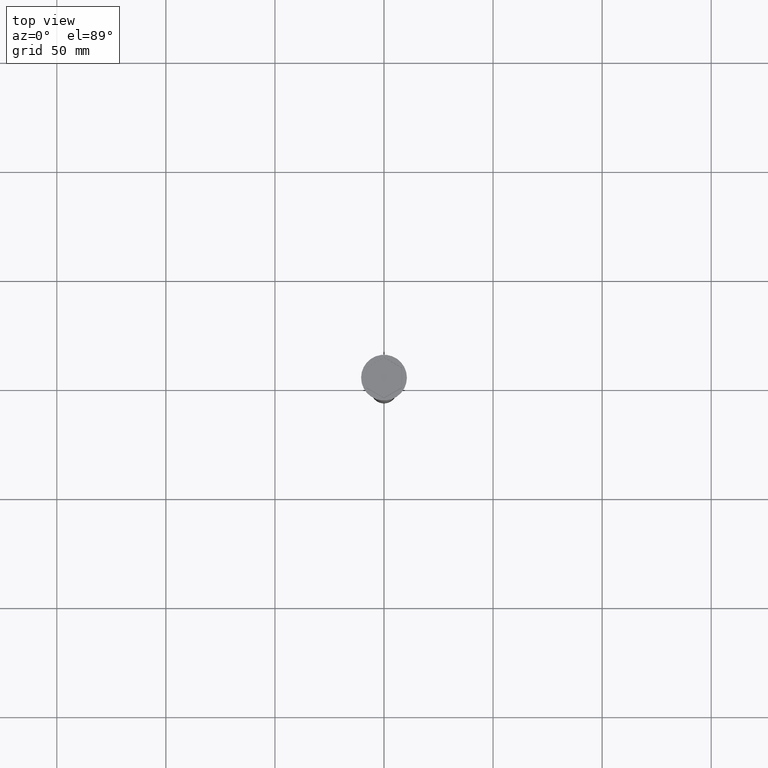
[diagram: clean part render]
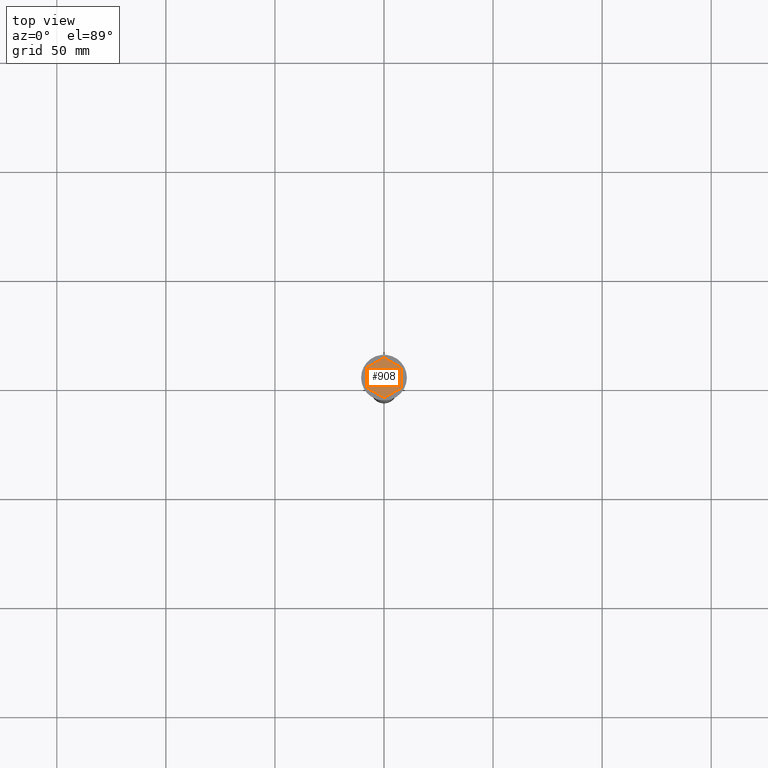
[diagram: same view with one face highlighted and labeled with its STEP entity id]
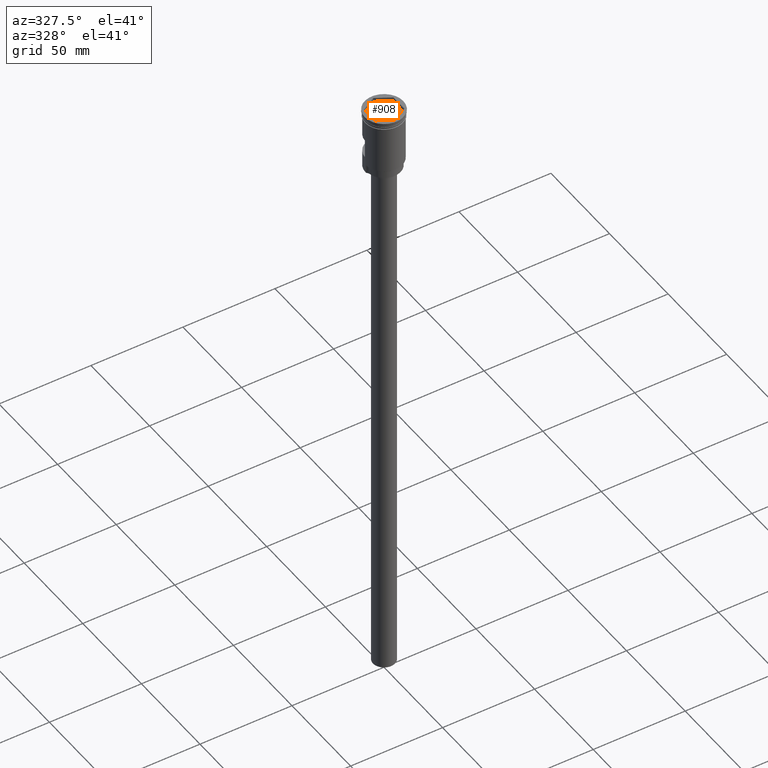
[diagram: same view with one face highlighted and labeled with its STEP entity id]
A machine part, top view. The second image highlights one B-rep face of the part: STEP entity #908.
A second angle (auxiliary view) of the same face is appended — the face is thin or edge-on in the first view.
In plain terms, the highlighted planar face has unit normal (-0, 0, 1).
Its self-contained STEP definition (entity closure, byte-faithful):
#27 = CARTESIAN_POINT ( 'NONE',  ( 3.999999999999998224, 6.928203230275506108, -2.000000000000000000 ) ) ;
#47 = VECTOR ( 'NONE', #156, 999.9999999999998863 ) ;
#53 = VECTOR ( 'NONE', #1200, 1000.000000000000000 ) ;
#114 = EDGE_CURVE ( 'NONE', #380, #1050, #1011, .T. ) ;
#156 = DIRECTION ( 'NONE',  ( -0.8660254037844387076, 0.5000000000000001110, 0.000000000000000000 ) ) ;
#175 = CARTESIAN_POINT ( 'NONE',  ( 0.000000000000000000, 0.000000000000000000, -2.000000000000000000 ) ) ;
#205 = CARTESIAN_POINT ( 'NONE',  ( -8.000000000000000000, 4.618802153517002296, -2.000000000000000000 ) ) ;
#240 = CARTESIAN_POINT ( 'NONE',  ( -8.000000000000000000, 0.000000000000000000, -2.000000000000000000 ) ) ;
#252 = ORIENTED_EDGE ( 'NONE', *, *, #853, .T. ) ;
#258 = VERTEX_POINT ( 'NONE', #205 ) ;
#313 = CARTESIAN_POINT ( 'NONE',  ( 0.000000000000000000, 9.237604307034009921, -2.000000000000000000 ) ) ;
#341 = VERTEX_POINT ( 'NONE', #1471 ) ;
#380 = VERTEX_POINT ( 'NONE', #1345 ) ;
#381 = CARTESIAN_POINT ( 'NONE',  ( -3.999999999999998224, 6.928203230275506108, -2.000000000000000000 ) ) ;
#388 = DIRECTION ( 'NONE',  ( 0.8660254037844387076, 0.4999999999999999445, 0.000000000000000000 ) ) ;
#399 = ORIENTED_EDGE ( 'NONE', *, *, #114, .T. ) ;
#418 = DIRECTION ( 'NONE',  ( -0.000000000000000000, 0.000000000000000000, 1.000000000000000000 ) ) ;
#453 = AXIS2_PLACEMENT_3D ( 'NONE', #175, #418, #786 ) ;
#464 = EDGE_CURVE ( 'NONE', #620, #539, #624, .T. ) ;
#507 = VECTOR ( 'NONE', #1603, 1000.000000000000000 ) ;
#519 = CARTESIAN_POINT ( 'NONE',  ( 4.000000000000000000, -6.928203230275510549, -2.000000000000000000 ) ) ;
#539 = VERTEX_POINT ( 'NONE', #313 ) ;
#620 = VERTEX_POINT ( 'NONE', #1468 ) ;
#624 = LINE ( 'NONE', #27, #47 ) ;
#657 = DIRECTION ( 'NONE',  ( 0.8660254037844387076, -0.4999999999999999445, 0.000000000000000000 ) ) ;
#659 = ORIENTED_EDGE ( 'NONE', *, *, #1212, .T. ) ;
#663 = VECTOR ( 'NONE', #783, 999.9999999999998863 ) ;
#746 = EDGE_LOOP ( 'NONE', ( #960, #659, #914, #252, #399, #982 ) ) ;
#783 = DIRECTION ( 'NONE',  ( -0.8660254037844387076, -0.5000000000000001110, 0.000000000000000000 ) ) ;
#786 = DIRECTION ( 'NONE',  ( 1.000000000000000000, 0.000000000000000000, 0.000000000000000000 ) ) ;
#853 = EDGE_CURVE ( 'NONE', #341, #380, #1182, .T. ) ;
#898 = VECTOR ( 'NONE', #388, 999.9999999999998863 ) ;
#908 = ADVANCED_FACE ( 'NONE', ( #1411 ), #1405, .T. ) ;
#911 = LINE ( 'NONE', #381, #663 ) ;
#914 = ORIENTED_EDGE ( 'NONE', *, *, #1521, .T. ) ;
#960 = ORIENTED_EDGE ( 'NONE', *, *, #464, .T. ) ;
#982 = ORIENTED_EDGE ( 'NONE', *, *, #1439, .T. ) ;
#997 = CARTESIAN_POINT ( 'NONE',  ( 8.000000000000000000, -4.618802153517008513, -2.000000000000000000 ) ) ;
#1011 = LINE ( 'NONE', #519, #898 ) ;
#1050 = VERTEX_POINT ( 'NONE', #997 ) ;
#1104 = LINE ( 'NONE', #240, #507 ) ;
#1182 = LINE ( 'NONE', #1418, #1291 ) ;
#1200 = DIRECTION ( 'NONE',  ( 0.000000000000000000, 1.000000000000000000, -0.000000000000000000 ) ) ;
#1212 = EDGE_CURVE ( 'NONE', #539, #258, #911, .T. ) ;
#1291 = VECTOR ( 'NONE', #657, 999.9999999999998863 ) ;
#1321 = CARTESIAN_POINT ( 'NONE',  ( 8.000000000000000000, 0.000000000000000000, -2.000000000000000000 ) ) ;
#1345 = CARTESIAN_POINT ( 'NONE',  ( 0.000000000000000000, -9.237604307034013473, -2.000000000000000000 ) ) ;
#1405 = PLANE ( 'NONE',  #453 ) ;
#1411 = FACE_OUTER_BOUND ( 'NONE', #746, .T. ) ;
#1418 = CARTESIAN_POINT ( 'NONE',  ( -4.000000000000000000, -6.928203230275510549, -2.000000000000000000 ) ) ;
#1439 = EDGE_CURVE ( 'NONE', #1050, #620, #1441, .T. ) ;
#1441 = LINE ( 'NONE', #1321, #53 ) ;
#1468 = CARTESIAN_POINT ( 'NONE',  ( 8.000000000000000000, 4.618802153517003184, -2.000000000000000000 ) ) ;
#1471 = CARTESIAN_POINT ( 'NONE',  ( -8.000000000000000000, -4.618802153517008513, -2.000000000000000000 ) ) ;
#1521 = EDGE_CURVE ( 'NONE', #258, #341, #1104, .T. ) ;
#1603 = DIRECTION ( 'NONE',  ( 0.000000000000000000, -1.000000000000000000, 0.000000000000000000 ) ) ;